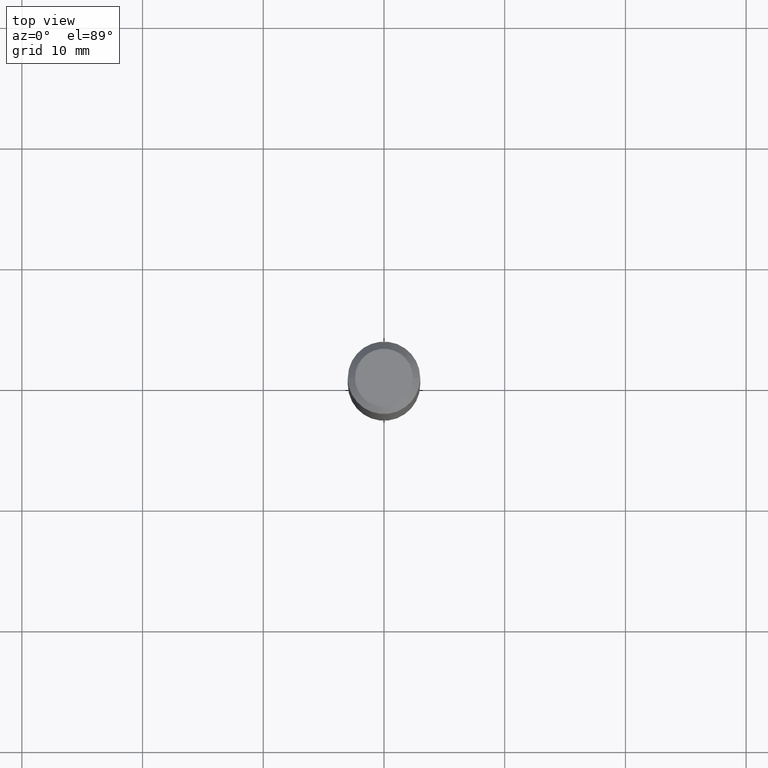
[diagram: clean part render]
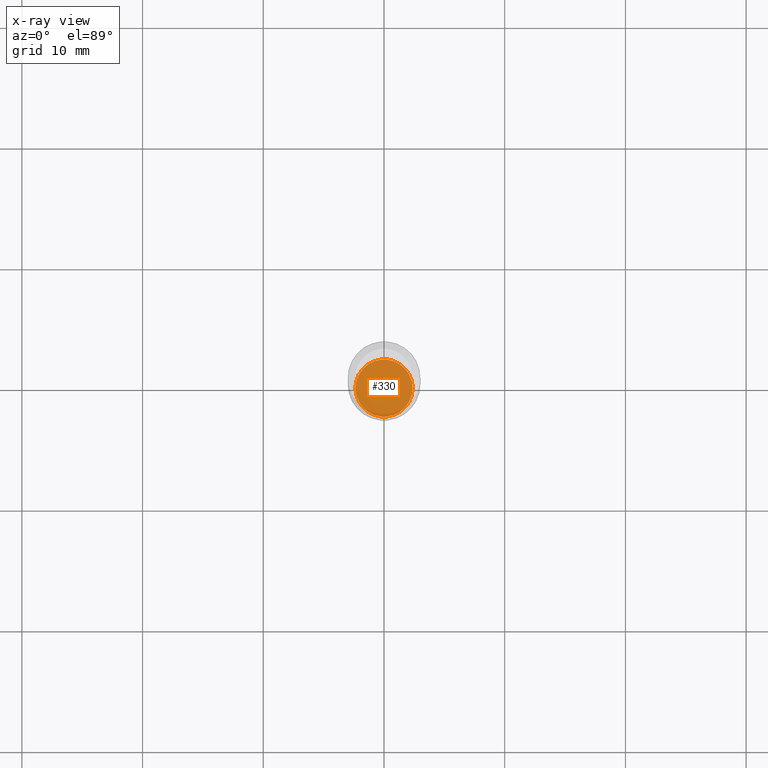
[diagram: x-ray — body ghosted, one internal face saturated and labeled with its STEP entity id]
A machine part, top view, then the same camera in x-ray: the body is ghosted and one INTERNAL B-rep face — a face not visible from any outside direction — is saturated and labeled: STEP entity #330.
In plain terms, the highlighted planar face has unit normal (-0, 0, 1).
Its self-contained STEP definition (entity closure, byte-faithful):
#35 = CIRCLE ( 'NONE', #187, 0.09324999999999998568 ) ;
#69 = DIRECTION ( 'NONE',  ( -2.445468806185136597E-29, 3.491481338843145583E-15, 1.000000000000000000 ) ) ;
#78 = FACE_OUTER_BOUND ( 'NONE', #101, .T. ) ;
#101 = EDGE_LOOP ( 'NONE', ( #121, #513 ) ) ;
#121 = ORIENTED_EDGE ( 'NONE', *, *, #258, .F. ) ;
#153 = VERTEX_POINT ( 'NONE', #331 ) ;
#166 = CARTESIAN_POINT ( 'NONE',  ( -0.09324999999999998568, -6.154331022758027105E-15, -1.953200000000000269 ) ) ;
#172 = DIRECTION ( 'NONE',  ( 1.000000000000000000, -6.982962677686269077E-15, 0.000000000000000000 ) ) ;
#186 = PLANE ( 'NONE',  #487 ) ;
#187 = AXIS2_PLACEMENT_3D ( 'NONE', #455, #324, #172 ) ;
#190 = CARTESIAN_POINT ( 'NONE',  ( 4.776489672240809845E-29, -6.819561351028432909E-15, -1.953200000000000269 ) ) ;
#232 = CIRCLE ( 'NONE', #319, 0.09324999999999998568 ) ;
#258 = EDGE_CURVE ( 'NONE', #153, #462, #35, .T. ) ;
#277 = CARTESIAN_POINT ( 'NONE',  ( 7.807781452751668233E-30, -1.254164767941989792E-14, -1.953200000000000269 ) ) ;
#314 = DIRECTION ( 'NONE',  ( -2.438088387897960049E-29, 3.491481338843145188E-15, 1.000000000000000000 ) ) ;
#319 = AXIS2_PLACEMENT_3D ( 'NONE', #190, #69, #424 ) ;
#324 = DIRECTION ( 'NONE',  ( -2.445468806185136597E-29, 3.491481338843145583E-15, 1.000000000000000000 ) ) ;
#330 = ADVANCED_FACE ( 'NONE', ( #78 ), #186, .F. ) ;
#331 = CARTESIAN_POINT ( 'NONE',  ( 0.09324999999999998568, -7.470722620722678195E-15, -1.953200000000000269 ) ) ;
#395 = EDGE_CURVE ( 'NONE', #462, #153, #232, .T. ) ;
#424 = DIRECTION ( 'NONE',  ( 1.000000000000000000, -6.982962677686269077E-15, 0.000000000000000000 ) ) ;
#455 = CARTESIAN_POINT ( 'NONE',  ( 4.776489672240809845E-29, -6.819561351028432909E-15, -1.953200000000000269 ) ) ;
#462 = VERTEX_POINT ( 'NONE', #166 ) ;
#467 = DIRECTION ( 'NONE',  ( 1.000000000000000000, -6.982962677686265922E-15, 4.876176775795935793E-29 ) ) ;
#487 = AXIS2_PLACEMENT_3D ( 'NONE', #277, #314, #467 ) ;
#513 = ORIENTED_EDGE ( 'NONE', *, *, #395, .F. ) ;